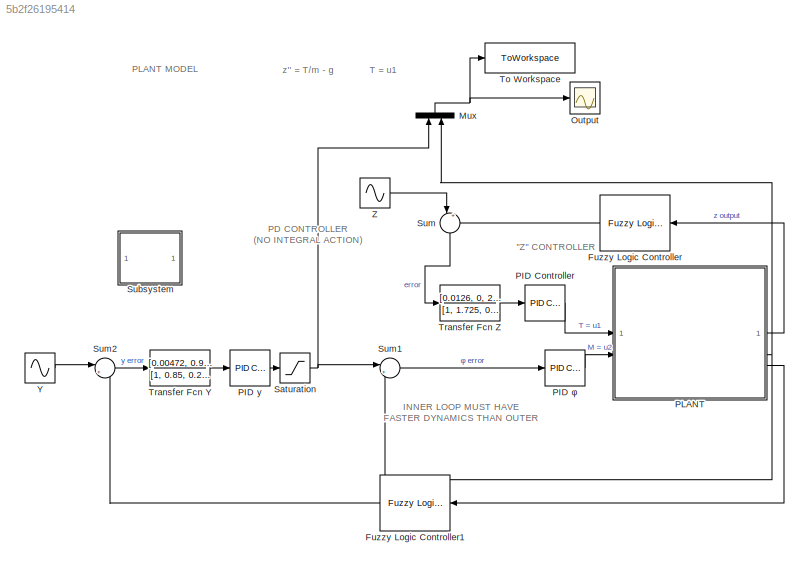
MODEL slx_5b2f26195414
KIND model
CONFIG AbsTol = auto
CONFIG EnableMultiTasking = off
CONFIG FixedStep = auto
CONFIG MaxStep = auto
CONFIG MinStep = auto
CONFIG RelTol = 1e-3
CONFIG SampleTimeConstraint = Unconstrained
CONFIG SolverName = VariableStepAuto
CONFIG StartTime = 0.0
CONFIG StopTime = 100.0
BLOCK [Reference] Fuzzy Logic Controller  REF=fuzblock/Fuzzy Logic   (lib defined in mdl_858b3b3e7478)
Controller
  NameLocation = top
  SourceBlock = fuzblock/Fuzzy Logic \nController
  SourceType = Fuzzy Inference System
BLOCK [Reference] Fuzzy Logic Controller1  REF=fuzblock/Fuzzy Logic   (lib defined in mdl_858b3b3e7478)
Controller
  NameLocation = top
  SourceBlock = fuzblock/Fuzzy Logic \nController
  SourceType = Fuzzy Inference System
BLOCK [Mux] Mux
  DisplayOption = bar
  Inputs = 2
  NameLocation = right
BLOCK [Scope] Output
  Floating = off
  NumInputPorts = 1
  ScopeSpecificationString = Simulink.scopes.TimeScopeBlockCfg('CurrentConfiguration', extmgr.ConfigurationSet(extmgr.Configuration('Core','General UI',true),extmgr.Configuration('Core','Source UI',true),extmgr.Configuration('Sources','WiredSimulink',true),extmgr.Configuration('Visuals','Time Domain',true,'SerializedDisplays',{struct('MinYLimReal','-3445408.22801','MaxYLimReal','4546543.05316','YLabelReal','','MinYLimMag','  ...<+1493ch>
BLOCK [Reference] PID Controller  REF=slpidlib/PID Controller
  LibrarySourceBlock = simulink/Continuous/PID Controller
  SourceBlock = slpidlib/PID Controller
  SourceType = PID 1dof
BLOCK [Reference] PID y  REF=slpidlib/PID Controller
  LibrarySourceBlock = simulink/Continuous/PID Controller
  SourceBlock = slpidlib/PID Controller
  SourceType = PID 1dof
BLOCK [Reference] PID φ  REF=slpidlib/PID Controller
  LibrarySourceBlock = simulink/Continuous/PID Controller
  SourceBlock = slpidlib/PID Controller
  SourceType = PID 1dof
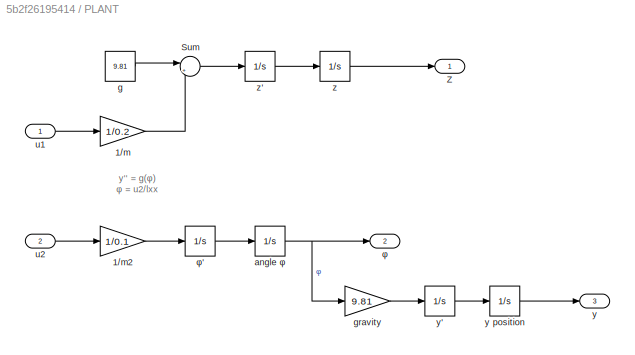
BLOCK [SubSystem] PLANT
BLOCK [Gain] PLANT/1//m
  Gain = 1/0.2
BLOCK [Gain] PLANT/1//m2
  Gain = 1/0.1
BLOCK [Sum] PLANT/Sum
  Inputs = |+-
BLOCK [Outport] PLANT/Z
BLOCK [Integrator] PLANT/angle φ
BLOCK [Constant] PLANT/g
  Value = 9.81
BLOCK [Gain] PLANT/gravity
  Gain = 9.81
BLOCK [Inport] PLANT/u1
BLOCK [Inport] PLANT/u2
  Port = 2
BLOCK [Outport] PLANT/y
  Port = 3
BLOCK [Integrator] PLANT/y position
BLOCK [Integrator] PLANT/y'
BLOCK [Integrator] PLANT/z
BLOCK [Integrator] PLANT/z'
BLOCK [Outport] PLANT/φ
  Port = 2
BLOCK [Integrator] PLANT/φ'
BLOCK [Saturate] Saturation
  LowerLimit = -0.8
  UpperLimit = 0.8
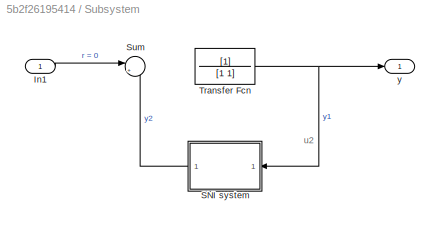
BLOCK [SubSystem] Subsystem
BLOCK [Inport] Subsystem/In1
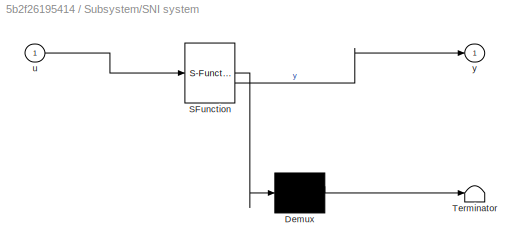
BLOCK [SubSystem] Subsystem/SNI system
  ErrorFcn = Stateflow.Translate.translate
  LibrarySourceBlock = simulink/User-Defined\nFunctions/MATLAB Function
  PermitHierarchicalResolution = ExplicitOnly
  SFBlockType = MATLAB Function
  TreatAsAtomicUnit = on
BLOCK [Demux] Subsystem/SNI system/ Demux 
  Outputs = 1
BLOCK [S-Function] Subsystem/SNI system/ SFunction 
  EnableBusSupport = on
  FunctionName = sf_sfun
  PortCounts = [1 2]
  SFcnIsStateOwnerBlock = off
  SFunctionDeploymentMode = off
  Tag = Stateflow S-Function 1
BLOCK [Terminator] Subsystem/SNI system/ Terminator 
BLOCK [Inport] Subsystem/SNI system/u
BLOCK [Outport] Subsystem/SNI system/y
BLOCK [Sum] Subsystem/Sum
  Inputs = |++
BLOCK [TransferFcn] Subsystem/Transfer Fcn
  Denominator = [1 1]
BLOCK [Outport] Subsystem/y
BLOCK [Sum] Sum
  Inputs = |+-
  NameLocation = left
BLOCK [Sum] Sum1
  Inputs = |+-
BLOCK [Sum] Sum2
  Inputs = |+-
BLOCK [ToWorkspace] To Workspace
  FixptAsFi = on
  MaxDataPoints = inf
  SampleTime = -1
  SaveFormat = Timeseries
  VariableName = simout
BLOCK [TransferFcn] Transfer Fcn Y
  Denominator = [1, 0.85, 0.232]
  Numerator = [0.00472, 0.945]
BLOCK [TransferFcn] Transfer Fcn Z
  Denominator = [1, 1.725, 0.0724]
  Numerator = [0.0126, 0, 2.534]
BLOCK [Sin] Y
  Amplitude = 5
  SampleTime = 0
BLOCK [Sin] Z
  Amplitude = 5
  SampleTime = 0
ANNOTATION (root): "Z" CONTROLLER
ANNOTATION (root): T = u1
ANNOTATION (root): z'' = T/m - g
ANNOTATION (root): PLANT MODEL
ANNOTATION (root): INNER LOOP MUST HAVE FASTER DYNAMICS THAN OUTER
ANNOTATION (root): PD CONTROLLER (NO INTEGRAL ACTION)
ANNOTATION PLANT: y'' = g(φ) φ = u2/lxx
ANNOTATION Subsystem: u2
LINE Fuzzy Logic Controller1:1 -> Sum2:2
LINE Fuzzy Logic Controller:1 -> Sum:2
NET Mux:1 -> Output:1, To Workspace:1
LINE PID Controller:1 -> PLANT:1
LINE PID y:1 -> Saturation:1
LINE PID φ:1 -> PLANT:2
LINE PLANT/1//m2:1 -> PLANT/φ':1
LINE PLANT/1//m:1 -> PLANT/Sum:2
LINE PLANT/Sum:1 -> PLANT/z':1
NET PLANT/angle φ:1 -> PLANT/gravity:1, PLANT/φ:1
LINE PLANT/g:1 -> PLANT/Sum:1
LINE PLANT/gravity:1 -> PLANT/y':1
LINE PLANT/u1:1 -> PLANT/1//m:1
LINE PLANT/u2:1 -> PLANT/1//m2:1
LINE PLANT/y position:1 -> PLANT/y:1
LINE PLANT/y':1 -> PLANT/y position:1
LINE PLANT/z':1 -> PLANT/z:1
LINE PLANT/z:1 -> PLANT/Z:1
LINE PLANT/φ':1 -> PLANT/angle φ:1
LINE PLANT:1 -> Fuzzy Logic Controller:1
NET PLANT:2 -> Mux:2, Sum1:2
LINE PLANT:3 -> Fuzzy Logic Controller1:1
NET Saturation:1 -> Mux:1, Sum1:1
LINE Subsystem/In1:1 -> Subsystem/Sum:1
LINE Subsystem/SNI system:1 -> Subsystem/Sum:2
NET Subsystem/Transfer Fcn:1 -> Subsystem/SNI system:1, Subsystem/y:1
LINE Sum1:1 -> PID φ:1
LINE Sum2:1 -> Transfer Fcn Y:1
LINE Sum:1 -> Transfer Fcn Z:1
LINE Transfer Fcn Y:1 -> PID y:1
LINE Transfer Fcn Z:1 -> PID Controller:1
LINE Y:1 -> Sum2:1
LINE Z:1 -> Sum:1
note: NET lines group one-source signal fan-out (src -> all destinations, sorted); 1:1 wires keep LINE
CHART Subsystem/SNI system states=1 transitions=1
  STATE_LABEL 'eML_blk_kernel()'
  STATE_LABEL 'SCRIPT:\nfunction y = fcn(u)\n\ny = u;\n'
CHART  states=0 transitions=0
